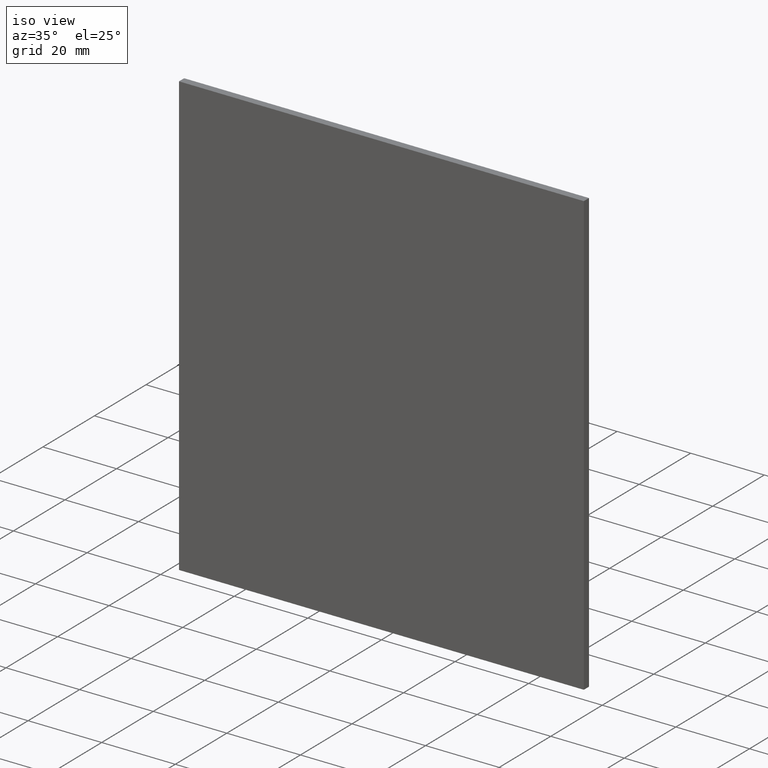
[diagram: clean part render]
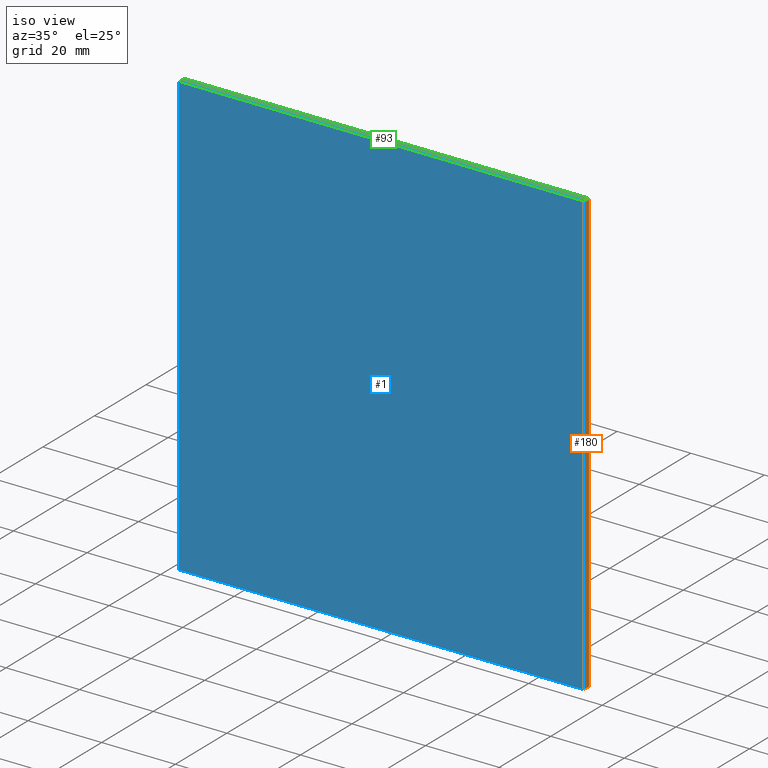
[diagram: same view with three faces highlighted in distinct colors, each labeled with its STEP entity id]
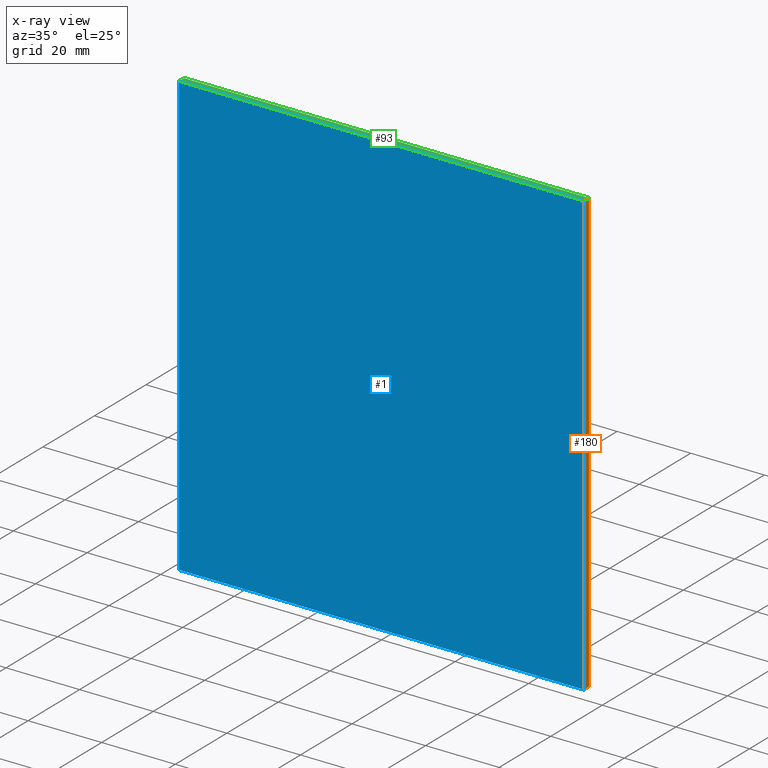
[diagram: x-ray of the same camera — body ghosted, the three highlighted faces saturated]
A machine part, iso view with three faces highlighted in distinct colors.
The next image is the same camera in x-ray (body ghosted, the three faces saturated) — at least one of them is partly hidden behind the body in this view.
Their STEP definitions:

[orange] entity #180 — the highlighted planar face has unit normal (-1, 0, 0).
#7 = VECTOR ( 'NONE', #10, 1000.000000000000000 ) ;
#9 = DIRECTION ( 'NONE',  ( -0.0000000000000000000, -1.000000000000000000, -0.0000000000000000000 ) ) ;
#10 = DIRECTION ( 'NONE',  ( -5.782411586589357400E-017, -0.0000000000000000000, -1.000000000000000000 ) ) ;
#17 = VERTEX_POINT ( 'NONE', #127 ) ;
#18 = AXIS2_PLACEMENT_3D ( 'NONE', #168, #151, #57 ) ;
#20 = LINE ( 'NONE', #149, #101 ) ;
#25 = CARTESIAN_POINT ( 'NONE',  ( 55.00000000000000700, 2.000000000000000000, -60.00000000000002100 ) ) ;
#29 = CARTESIAN_POINT ( 'NONE',  ( 55.00000000000000700, 0.0000000000000000000, -60.00000000000002100 ) ) ;
#39 = LINE ( 'NONE', #67, #62 ) ;
#42 = ORIENTED_EDGE ( 'NONE', *, *, #65, .F. ) ;
#55 = ORIENTED_EDGE ( 'NONE', *, *, #162, .T. ) ;
#56 = FACE_OUTER_BOUND ( 'NONE', #105, .T. ) ;
#57 = DIRECTION ( 'NONE',  ( 5.782411586589358600E-017, 0.0000000000000000000, 1.000000000000000000 ) ) ;
#62 = VECTOR ( 'NONE', #135, 1000.000000000000000 ) ;
#65 = EDGE_CURVE ( 'NONE', #150, #121, #20, .T. ) ;
#67 = CARTESIAN_POINT ( 'NONE',  ( 55.00000000000001400, 2.000000000000000000, 59.99999999999997900 ) ) ;
#68 = VERTEX_POINT ( 'NONE', #181 ) ;
#71 = EDGE_CURVE ( 'NONE', #17, #150, #176, .T. ) ;
#75 = VECTOR ( 'NONE', #170, 1000.000000000000000 ) ;
#88 = PLANE ( 'NONE',  #18 ) ;
#101 = VECTOR ( 'NONE', #9, 1000.000000000000000 ) ;
#102 = ORIENTED_EDGE ( 'NONE', *, *, #71, .F. ) ;
#105 = EDGE_LOOP ( 'NONE', ( #171, #42, #102, #55 ) ) ;
#113 = CARTESIAN_POINT ( 'NONE',  ( 55.00000000000000700, 0.0000000000000000000, -60.00000000000002100 ) ) ;
#121 = VERTEX_POINT ( 'NONE', #113 ) ;
#127 = CARTESIAN_POINT ( 'NONE',  ( 55.00000000000001400, 2.000000000000000000, 59.99999999999997900 ) ) ;
#132 = EDGE_CURVE ( 'NONE', #68, #121, #145, .T. ) ;
#135 = DIRECTION ( 'NONE',  ( -0.0000000000000000000, -1.000000000000000000, -0.0000000000000000000 ) ) ;
#145 = LINE ( 'NONE', #29, #75 ) ;
#149 = CARTESIAN_POINT ( 'NONE',  ( 55.00000000000000700, 2.000000000000000000, -60.00000000000002100 ) ) ;
#150 = VERTEX_POINT ( 'NONE', #154 ) ;
#151 = DIRECTION ( 'NONE',  ( -1.000000000000000000, 0.0000000000000000000, 5.782411586589358600E-017 ) ) ;
#154 = CARTESIAN_POINT ( 'NONE',  ( 55.00000000000000700, 2.000000000000000000, -60.00000000000002100 ) ) ;
#162 = EDGE_CURVE ( 'NONE', #17, #68, #39, .T. ) ;
#168 = CARTESIAN_POINT ( 'NONE',  ( 55.00000000000000700, 2.000000000000000000, -60.00000000000002100 ) ) ;
#170 = DIRECTION ( 'NONE',  ( -5.782411586589357400E-017, -0.0000000000000000000, -1.000000000000000000 ) ) ;
#171 = ORIENTED_EDGE ( 'NONE', *, *, #132, .T. ) ;
#176 = LINE ( 'NONE', #25, #7 ) ;
#180 = ADVANCED_FACE ( 'NONE', ( #56 ), #88, .F. ) ;
#181 = CARTESIAN_POINT ( 'NONE',  ( 55.00000000000001400, 0.0000000000000000000, 59.99999999999997900 ) ) ;

[blue] entity #1 — the highlighted planar face has unit normal (0, 1, 0).
#1 = ADVANCED_FACE ( 'NONE', ( #45 ), #157, .F. ) ;
#11 = EDGE_CURVE ( 'NONE', #121, #193, #26, .T. ) ;
#16 = ORIENTED_EDGE ( 'NONE', *, *, #187, .F. ) ;
#22 = VERTEX_POINT ( 'NONE', #84 ) ;
#26 = LINE ( 'NONE', #194, #189 ) ;
#29 = CARTESIAN_POINT ( 'NONE',  ( 55.00000000000000700, 0.0000000000000000000, -60.00000000000002100 ) ) ;
#35 = DIRECTION ( 'NONE',  ( 0.0000000000000000000, -0.0000000000000000000, 1.000000000000000000 ) ) ;
#40 = CARTESIAN_POINT ( 'NONE',  ( -54.99999999999998600, 0.0000000000000000000, 59.99999999999997900 ) ) ;
#44 = CARTESIAN_POINT ( 'NONE',  ( -55.00000000000000700, 0.0000000000000000000, -60.00000000000002100 ) ) ;
#45 = FACE_OUTER_BOUND ( 'NONE', #74, .T. ) ;
#68 = VERTEX_POINT ( 'NONE', #181 ) ;
#72 = VECTOR ( 'NONE', #89, 1000.000000000000000 ) ;
#74 = EDGE_LOOP ( 'NONE', ( #83, #16, #146, #201 ) ) ;
#75 = VECTOR ( 'NONE', #170, 1000.000000000000000 ) ;
#77 = DIRECTION ( 'NONE',  ( 1.000000000000000000, 0.0000000000000000000, 0.0000000000000000000 ) ) ;
#83 = ORIENTED_EDGE ( 'NONE', *, *, #132, .F. ) ;
#84 = CARTESIAN_POINT ( 'NONE',  ( -54.99999999999998600, 0.0000000000000000000, 59.99999999999997900 ) ) ;
#87 = LINE ( 'NONE', #44, #72 ) ;
#89 = DIRECTION ( 'NONE',  ( 1.734723475976807100E-016, 0.0000000000000000000, 1.000000000000000000 ) ) ;
#95 = DIRECTION ( 'NONE',  ( 0.0000000000000000000, 1.000000000000000000, 0.0000000000000000000 ) ) ;
#110 = DIRECTION ( 'NONE',  ( -1.000000000000000000, -0.0000000000000000000, -0.0000000000000000000 ) ) ;
#111 = CARTESIAN_POINT ( 'NONE',  ( 0.0000000000000000000, 0.0000000000000000000, 0.0000000000000000000 ) ) ;
#113 = CARTESIAN_POINT ( 'NONE',  ( 55.00000000000000700, 0.0000000000000000000, -60.00000000000002100 ) ) ;
#121 = VERTEX_POINT ( 'NONE', #113 ) ;
#122 = AXIS2_PLACEMENT_3D ( 'NONE', #111, #95, #35 ) ;
#132 = EDGE_CURVE ( 'NONE', #68, #121, #145, .T. ) ;
#145 = LINE ( 'NONE', #29, #75 ) ;
#146 = ORIENTED_EDGE ( 'NONE', *, *, #167, .F. ) ;
#157 = PLANE ( 'NONE',  #122 ) ;
#167 = EDGE_CURVE ( 'NONE', #193, #22, #87, .T. ) ;
#170 = DIRECTION ( 'NONE',  ( -5.782411586589357400E-017, -0.0000000000000000000, -1.000000000000000000 ) ) ;
#174 = VECTOR ( 'NONE', #77, 1000.000000000000000 ) ;
#181 = CARTESIAN_POINT ( 'NONE',  ( 55.00000000000001400, 0.0000000000000000000, 59.99999999999997900 ) ) ;
#182 = CARTESIAN_POINT ( 'NONE',  ( -55.00000000000000700, 0.0000000000000000000, -60.00000000000002100 ) ) ;
#187 = EDGE_CURVE ( 'NONE', #22, #68, #192, .T. ) ;
#189 = VECTOR ( 'NONE', #110, 1000.000000000000000 ) ;
#192 = LINE ( 'NONE', #40, #174 ) ;
#193 = VERTEX_POINT ( 'NONE', #182 ) ;
#194 = CARTESIAN_POINT ( 'NONE',  ( -55.00000000000000700, 0.0000000000000000000, -60.00000000000002100 ) ) ;
#201 = ORIENTED_EDGE ( 'NONE', *, *, #11, .F. ) ;

[green] entity #93 — the highlighted planar face has unit normal (0, 0, -1).
#17 = VERTEX_POINT ( 'NONE', #127 ) ;
#22 = VERTEX_POINT ( 'NONE', #84 ) ;
#27 = DIRECTION ( 'NONE',  ( -0.0000000000000000000, -1.000000000000000000, -0.0000000000000000000 ) ) ;
#39 = LINE ( 'NONE', #67, #62 ) ;
#40 = CARTESIAN_POINT ( 'NONE',  ( -54.99999999999998600, 0.0000000000000000000, 59.99999999999997900 ) ) ;
#46 = DIRECTION ( 'NONE',  ( -1.000000000000000000, 0.0000000000000000000, -0.0000000000000000000 ) ) ;
#47 = VECTOR ( 'NONE', #100, 1000.000000000000000 ) ;
#49 = CARTESIAN_POINT ( 'NONE',  ( -54.99999999999998600, 2.000000000000000000, 59.99999999999997900 ) ) ;
#58 = CARTESIAN_POINT ( 'NONE',  ( -54.99999999999998600, 2.000000000000000000, 59.99999999999997900 ) ) ;
#62 = VECTOR ( 'NONE', #135, 1000.000000000000000 ) ;
#67 = CARTESIAN_POINT ( 'NONE',  ( 55.00000000000001400, 2.000000000000000000, 59.99999999999997900 ) ) ;
#68 = VERTEX_POINT ( 'NONE', #181 ) ;
#69 = LINE ( 'NONE', #49, #131 ) ;
#77 = DIRECTION ( 'NONE',  ( 1.000000000000000000, 0.0000000000000000000, 0.0000000000000000000 ) ) ;
#79 = VERTEX_POINT ( 'NONE', #124 ) ;
#81 = DIRECTION ( 'NONE',  ( 0.0000000000000000000, 0.0000000000000000000, -1.000000000000000000 ) ) ;
#84 = CARTESIAN_POINT ( 'NONE',  ( -54.99999999999998600, 0.0000000000000000000, 59.99999999999997900 ) ) ;
#93 = ADVANCED_FACE ( 'NONE', ( #184 ), #97, .F. ) ;
#97 = PLANE ( 'NONE',  #197 ) ;
#100 = DIRECTION ( 'NONE',  ( 1.000000000000000000, 0.0000000000000000000, 0.0000000000000000000 ) ) ;
#107 = ORIENTED_EDGE ( 'NONE', *, *, #162, .F. ) ;
#108 = ORIENTED_EDGE ( 'NONE', *, *, #187, .T. ) ;
#124 = CARTESIAN_POINT ( 'NONE',  ( -54.99999999999998600, 2.000000000000000000, 59.99999999999997900 ) ) ;
#127 = CARTESIAN_POINT ( 'NONE',  ( 55.00000000000001400, 2.000000000000000000, 59.99999999999997900 ) ) ;
#129 = EDGE_CURVE ( 'NONE', #79, #17, #165, .T. ) ;
#131 = VECTOR ( 'NONE', #27, 1000.000000000000000 ) ;
#133 = EDGE_CURVE ( 'NONE', #79, #22, #69, .T. ) ;
#135 = DIRECTION ( 'NONE',  ( -0.0000000000000000000, -1.000000000000000000, -0.0000000000000000000 ) ) ;
#140 = CARTESIAN_POINT ( 'NONE',  ( -54.99999999999998600, 2.000000000000000000, 59.99999999999997900 ) ) ;
#156 = ORIENTED_EDGE ( 'NONE', *, *, #133, .T. ) ;
#161 = EDGE_LOOP ( 'NONE', ( #108, #107, #200, #156 ) ) ;
#162 = EDGE_CURVE ( 'NONE', #17, #68, #39, .T. ) ;
#165 = LINE ( 'NONE', #58, #47 ) ;
#174 = VECTOR ( 'NONE', #77, 1000.000000000000000 ) ;
#181 = CARTESIAN_POINT ( 'NONE',  ( 55.00000000000001400, 0.0000000000000000000, 59.99999999999997900 ) ) ;
#184 = FACE_OUTER_BOUND ( 'NONE', #161, .T. ) ;
#187 = EDGE_CURVE ( 'NONE', #22, #68, #192, .T. ) ;
#192 = LINE ( 'NONE', #40, #174 ) ;
#197 = AXIS2_PLACEMENT_3D ( 'NONE', #140, #81, #46 ) ;
#200 = ORIENTED_EDGE ( 'NONE', *, *, #129, .F. ) ;